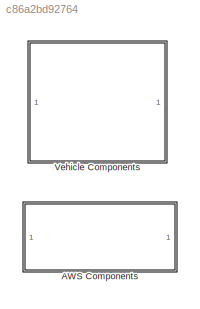
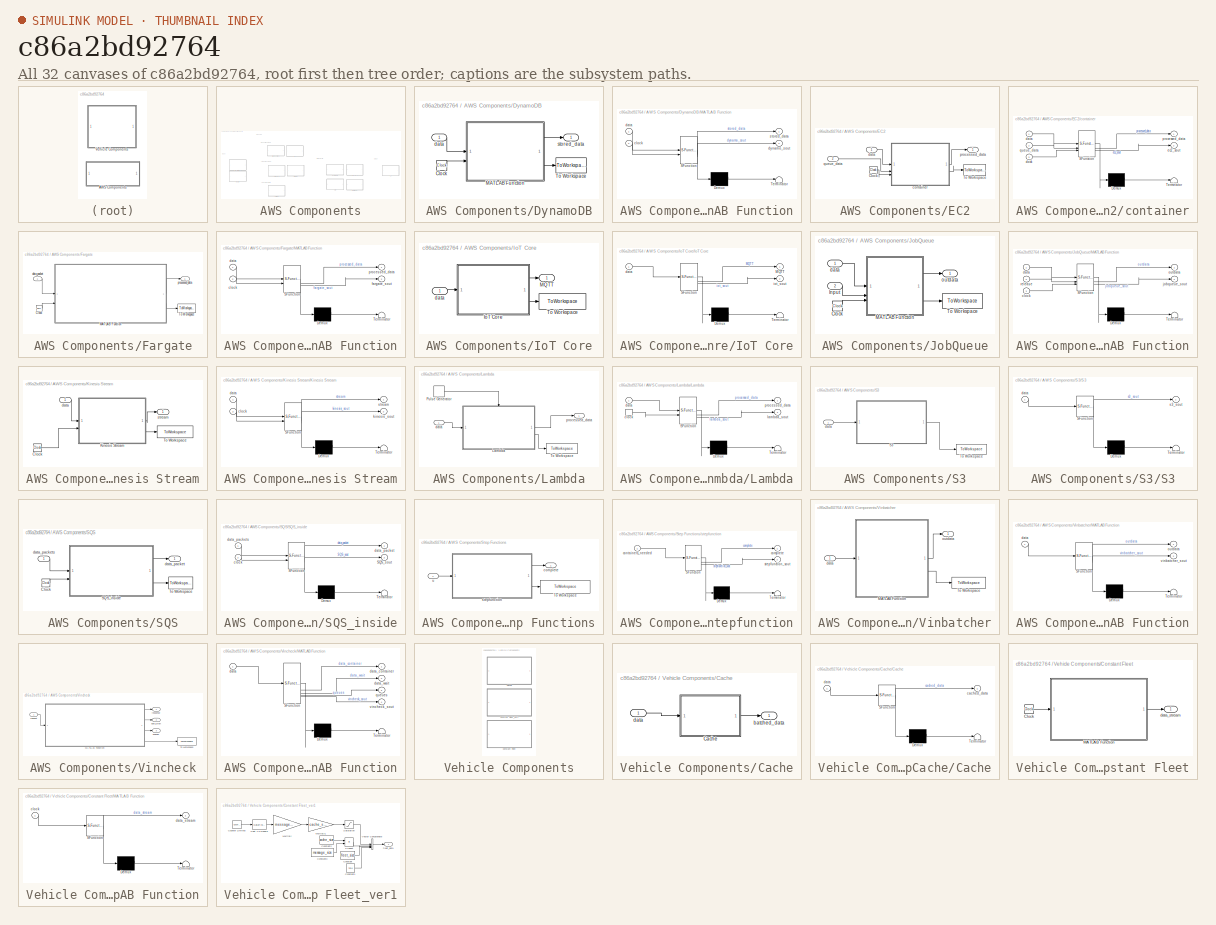
[diagram: thumbnail index - all 32 canvases of the model, root first then tree order]
MODEL slx_c86a2bd92764
KIND library
CONFIG AbsTol = auto
CONFIG EnableMultiTasking = off
CONFIG FixedStep = auto
CONFIG MaxStep = auto
CONFIG MinStep = auto
CONFIG RelTol = 1e-3
CONFIG SampleTimeConstraint = Unconstrained
CONFIG SolverName = VariableStepAuto
CONFIG StartTime = 0.0
CONFIG StopTime = 10.0
BLOCK [SubSystem] AWS Components
BLOCK [SubSystem] AWS Components/DynamoDB
BLOCK [Clock] AWS Components/DynamoDB/Clock
BLOCK [SubSystem] AWS Components/DynamoDB/MATLAB Function
  ErrorFcn = Stateflow.Translate.translate
  LibrarySourceBlock = simulink/User-Defined\nFunctions/MATLAB Function
  PermitHierarchicalResolution = ExplicitOnly
  SFBlockType = MATLAB Function
  TreatAsAtomicUnit = on
BLOCK [Demux] AWS Components/DynamoDB/MATLAB Function/ Demux 
  Outputs = 1
BLOCK [S-Function] AWS Components/DynamoDB/MATLAB Function/ SFunction 
  EnableBusSupport = off
  FunctionName = sf_sfun
  Parameters = dynamo_ondemand,dynamo_peakcapacity,dynamo_peaktime,dynamo_readrate,dynamo_stream,dynamo_writerate
  PortCounts = [2 3]
  SFcnIsStateOwnerBlock = off
  SFunctionDeploymentMode = off
  Tag = Stateflow S-Function 19
BLOCK [Terminator] AWS Components/DynamoDB/MATLAB Function/ Terminator 
BLOCK [Inport] AWS Components/DynamoDB/MATLAB Function/clock
  Port = 2
BLOCK [Inport] AWS Components/DynamoDB/MATLAB Function/data
BLOCK [Outport] AWS Components/DynamoDB/MATLAB Function/dynamo_sout
  Port = 2
BLOCK [Outport] AWS Components/DynamoDB/MATLAB Function/stored_data
BLOCK [ToWorkspace] AWS Components/DynamoDB/To Workspace
  FixptAsFi = on
  MaxDataPoints = inf
  SampleTime = -1
  SaveFormat = Timeseries
  VariableName = dynamo_sout
BLOCK [Inport] AWS Components/DynamoDB/data
BLOCK [Outport] AWS Components/DynamoDB/stored_data
BLOCK [SubSystem] AWS Components/EC2
BLOCK [Clock] AWS Components/EC2/Clock
BLOCK [ToWorkspace] AWS Components/EC2/To Workspace
  FixptAsFi = on
  MaxDataPoints = inf
  SampleTime = -1
  SaveFormat = Timeseries
  VariableName = ec2_sout
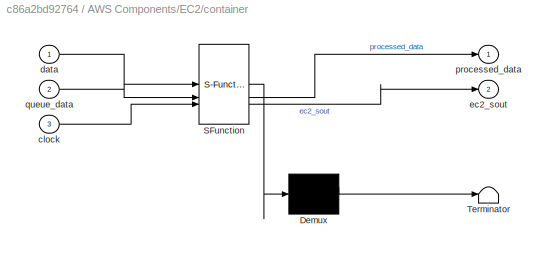
BLOCK [SubSystem] AWS Components/EC2/container
  ErrorFcn = Stateflow.Translate.translate
  LibrarySourceBlock = simulink/User-Defined\nFunctions/MATLAB Function
  PermitHierarchicalResolution = ExplicitOnly
  SFBlockType = MATLAB Function
  TreatAsAtomicUnit = on
BLOCK [Demux] AWS Components/EC2/container/ Demux 
  Outputs = 1
BLOCK [S-Function] AWS Components/EC2/container/ SFunction 
  EnableBusSupport = off
  FunctionName = sf_sfun
  Parameters = ec2_instances,ec2_memorylevel,ec2_vcpus
  PortCounts = [3 3]
  SFcnIsStateOwnerBlock = off
  SFunctionDeploymentMode = off
  Tag = Stateflow S-Function 4
BLOCK [Terminator] AWS Components/EC2/container/ Terminator 
BLOCK [Inport] AWS Components/EC2/container/clock
  Port = 3
BLOCK [Inport] AWS Components/EC2/container/data
BLOCK [Outport] AWS Components/EC2/container/ec2_sout
  Port = 2
BLOCK [Outport] AWS Components/EC2/container/processed_data
BLOCK [Inport] AWS Components/EC2/container/queue_data
  Port = 2
BLOCK [Inport] AWS Components/EC2/data
BLOCK [Outport] AWS Components/EC2/processed_data
BLOCK [Inport] AWS Components/EC2/queue_data
  Port = 2
BLOCK [SubSystem] AWS Components/Fargate
BLOCK [Clock] AWS Components/Fargate/Clock
BLOCK [SubSystem] AWS Components/Fargate/MATLAB Function
  ErrorFcn = Stateflow.Translate.translate
  LibrarySourceBlock = simulink/User-Defined\nFunctions/MATLAB Function
  PermitHierarchicalResolution = ExplicitOnly
  SFBlockType = MATLAB Function
  TreatAsAtomicUnit = on
BLOCK [Demux] AWS Components/Fargate/MATLAB Function/ Demux 
  Outputs = 1
BLOCK [S-Function] AWS Components/Fargate/MATLAB Function/ SFunction 
  EnableBusSupport = off
  FunctionName = sf_sfun
  Parameters = fargate_memorylevel,fargate_vcpus
  PortCounts = [2 3]
  SFcnIsStateOwnerBlock = off
  SFunctionDeploymentMode = off
  Tag = Stateflow S-Function 3
BLOCK [Terminator] AWS Components/Fargate/MATLAB Function/ Terminator 
BLOCK [Inport] AWS Components/Fargate/MATLAB Function/clock
  Port = 2
BLOCK [Inport] AWS Components/Fargate/MATLAB Function/data
BLOCK [Outport] AWS Components/Fargate/MATLAB Function/fargate_sout
  Port = 2
BLOCK [Outport] AWS Components/Fargate/MATLAB Function/processed_data
BLOCK [ToWorkspace] AWS Components/Fargate/To Workspace
  FixptAsFi = on
  MaxDataPoints = inf
  SampleTime = -1
  SaveFormat = Timeseries
  VariableName = fargate_sout
BLOCK [Inport] AWS Components/Fargate/data_packet
BLOCK [Outport] AWS Components/Fargate/processed_data
BLOCK [SubSystem] AWS Components/IoT Core
BLOCK [SubSystem] AWS Components/IoT Core/IoT Core
  ErrorFcn = Stateflow.Translate.translate
  LibrarySourceBlock = simulink/User-Defined\nFunctions/MATLAB Function
  PermitHierarchicalResolution = ExplicitOnly
  SFBlockType = MATLAB Function
  TreatAsAtomicUnit = on
BLOCK [Demux] AWS Components/IoT Core/IoT Core/ Demux 
  Outputs = 1
BLOCK [S-Function] AWS Components/IoT Core/IoT Core/ SFunction 
  EnableBusSupport = off
  FunctionName = sf_sfun
  PortCounts = [1 3]
  SFcnIsStateOwnerBlock = off
  SFunctionDeploymentMode = off
  Tag = Stateflow S-Function 15
BLOCK [Terminator] AWS Components/IoT Core/IoT Core/ Terminator 
BLOCK [Outport] AWS Components/IoT Core/IoT Core/MQTT
BLOCK [Inport] AWS Components/IoT Core/IoT Core/data
BLOCK [Outport] AWS Components/IoT Core/IoT Core/iot_sout
  Port = 2
BLOCK [Outport] AWS Components/IoT Core/MQTT
BLOCK [ToWorkspace] AWS Components/IoT Core/To Workspace
  FixptAsFi = on
  MaxDataPoints = inf
  SampleTime = -1
  SaveFormat = Timeseries
  VariableName = iot_sout
BLOCK [Inport] AWS Components/IoT Core/data
BLOCK [SubSystem] AWS Components/JobQueue
BLOCK [Clock] AWS Components/JobQueue/Clock
BLOCK [Inport] AWS Components/JobQueue/Input
  Port = 2
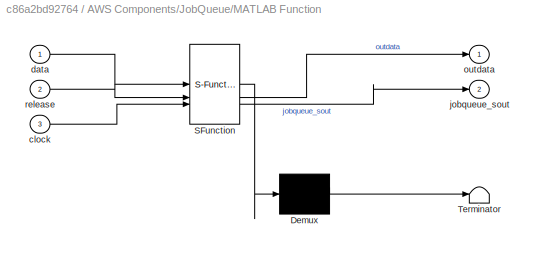
BLOCK [SubSystem] AWS Components/JobQueue/MATLAB Function
  ErrorFcn = Stateflow.Translate.translate
  LibrarySourceBlock = simulink/User-Defined\nFunctions/MATLAB Function
  PermitHierarchicalResolution = ExplicitOnly
  SFBlockType = MATLAB Function
  TreatAsAtomicUnit = on
BLOCK [Demux] AWS Components/JobQueue/MATLAB Function/ Demux 
  Outputs = 1
BLOCK [S-Function] AWS Components/JobQueue/MATLAB Function/ SFunction 
  EnableBusSupport = off
  FunctionName = sf_sfun
  PortCounts = [3 3]
  SFcnIsStateOwnerBlock = off
  SFunctionDeploymentMode = off
  Tag = Stateflow S-Function 5
BLOCK [Terminator] AWS Components/JobQueue/MATLAB Function/ Terminator 
BLOCK [Inport] AWS Components/JobQueue/MATLAB Function/clock
  Port = 3
BLOCK [Inport] AWS Components/JobQueue/MATLAB Function/data
BLOCK [Outport] AWS Components/JobQueue/MATLAB Function/jobqueue_sout
  Port = 2
BLOCK [Outport] AWS Components/JobQueue/MATLAB Function/outdata
BLOCK [Inport] AWS Components/JobQueue/MATLAB Function/release
  Port = 2
BLOCK [ToWorkspace] AWS Components/JobQueue/To Workspace
  FixptAsFi = on
  MaxDataPoints = inf
  SampleTime = -1
  SaveFormat = Timeseries
  VariableName = jobqueue_sout
BLOCK [Inport] AWS Components/JobQueue/data
BLOCK [Outport] AWS Components/JobQueue/outdata
BLOCK [SubSystem] AWS Components/Kinesis Stream
  ShowPortLabels = none
BLOCK [Clock] AWS Components/Kinesis Stream/Clock
BLOCK [SubSystem] AWS Components/Kinesis Stream/Kinesis Stream
  ErrorFcn = Stateflow.Translate.translate
  LibrarySourceBlock = simulink/User-Defined\nFunctions/MATLAB Function
  PermitHierarchicalResolution = ExplicitOnly
  SFBlockType = MATLAB Function
  TreatAsAtomicUnit = on
BLOCK [Demux] AWS Components/Kinesis Stream/Kinesis Stream/ Demux 
  Outputs = 1
BLOCK [S-Function] AWS Components/Kinesis Stream/Kinesis Stream/ SFunction 
  EnableBusSupport = off
  FunctionName = sf_sfun
  Parameters = kinesis_efos,kinesis_ondemand,kinesis_peak,kinesis_records
  PortCounts = [2 3]
  SFcnIsStateOwnerBlock = off
  SFunctionDeploymentMode = off
  Tag = Stateflow S-Function 18
BLOCK [Terminator] AWS Components/Kinesis Stream/Kinesis Stream/ Terminator 
BLOCK [Inport] AWS Components/Kinesis Stream/Kinesis Stream/clock
  Port = 2
BLOCK [Inport] AWS Components/Kinesis Stream/Kinesis Stream/data
BLOCK [Outport] AWS Components/Kinesis Stream/Kinesis Stream/kinesis_sout
  Port = 2
BLOCK [Outport] AWS Components/Kinesis Stream/Kinesis Stream/stream
BLOCK [ToWorkspace] AWS Components/Kinesis Stream/To Workspace
  FixptAsFi = on
  MaxDataPoints = inf
  SampleTime = -1
  SaveFormat = Timeseries
  VariableName = kinesis_sout
BLOCK [Inport] AWS Components/Kinesis Stream/data
BLOCK [Outport] AWS Components/Kinesis Stream/stream
BLOCK [SubSystem] AWS Components/Lambda
BLOCK [SubSystem] AWS Components/Lambda/Lambda
  ErrorFcn = Stateflow.Translate.translate
  LibrarySourceBlock = simulink/User-Defined\nFunctions/MATLAB Function
  PermitHierarchicalResolution = ExplicitOnly
  SFBlockType = MATLAB Function
  TreatAsAtomicUnit = on
BLOCK [Demux] AWS Components/Lambda/Lambda/ Demux 
  Outputs = 1
BLOCK [S-Function] AWS Components/Lambda/Lambda/ SFunction 
  EnableBusSupport = off
  FunctionName = sf_sfun
  Parameters = lambda_allocated_memory,lambda_parallel_instances
  PortCounts = [2 3]
  SFcnIsStateOwnerBlock = off
  SFunctionDeploymentMode = off
  Tag = Stateflow S-Function 13
BLOCK [Terminator] AWS Components/Lambda/Lambda/ Terminator 
BLOCK [TriggerPort] AWS Components/Lambda/Lambda/clock
  ShowOutputPort = on
  StatesWhenEnabling = held
  VariantControl = (inherit)
BLOCK [Inport] AWS Components/Lambda/Lambda/data
BLOCK [Outport] AWS Components/Lambda/Lambda/lambda_sout
  Port = 2
BLOCK [Outport] AWS Components/Lambda/Lambda/processed_data
BLOCK [DiscretePulseGenerator] AWS Components/Lambda/Pulse Generator
  Period = 1/log10(128)
  PulseType = Time based
  PulseWidth = 5
BLOCK [ToWorkspace] AWS Components/Lambda/To Workspace
  FixptAsFi = on
  MaxDataPoints = inf
  SampleTime = -1
  SaveFormat = Timeseries
  VariableName = lambda_sout
BLOCK [Inport] AWS Components/Lambda/data
BLOCK [Outport] AWS Components/Lambda/processed_data
BLOCK [SubSystem] AWS Components/S3
BLOCK [SubSystem] AWS Components/S3/S3
  ErrorFcn = Stateflow.Translate.translate
  LibrarySourceBlock = simulink/User-Defined\nFunctions/MATLAB Function
  PermitHierarchicalResolution = ExplicitOnly
  SFBlockType = MATLAB Function
  TreatAsAtomicUnit = on
BLOCK [Demux] AWS Components/S3/S3/ Demux 
  Outputs = 1
BLOCK [S-Function] AWS Components/S3/S3/ SFunction 
  EnableBusSupport = off
  FunctionName = sf_sfun
  PortCounts = [1 2]
  SFcnIsStateOwnerBlock = off
  SFunctionDeploymentMode = off
  Tag = Stateflow S-Function 14
BLOCK [Terminator] AWS Components/S3/S3/ Terminator 
BLOCK [Inport] AWS Components/S3/S3/data
BLOCK [Outport] AWS Components/S3/S3/s3_sout
BLOCK [ToWorkspace] AWS Components/S3/To Workspace
  FixptAsFi = on
  MaxDataPoints = inf
  SampleTime = -1
  SaveFormat = Timeseries
  VariableName = s3_sout
BLOCK [Inport] AWS Components/S3/data
BLOCK [SubSystem] AWS Components/SQS
BLOCK [Clock] AWS Components/SQS/Clock
BLOCK [SubSystem] AWS Components/SQS/SQS_inside
  ErrorFcn = Stateflow.Translate.translate
  LibrarySourceBlock = simulink/User-Defined\nFunctions/MATLAB Function
  PermitHierarchicalResolution = ExplicitOnly
  SFBlockType = MATLAB Function
  TreatAsAtomicUnit = on
BLOCK [Demux] AWS Components/SQS/SQS_inside/ Demux 
  Outputs = 1
BLOCK [S-Function] AWS Components/SQS/SQS_inside/ SFunction 
  EnableBusSupport = off
  FunctionName = sf_sfun
  Parameters = sqs_queue_size,sqs_timeout
  PortCounts = [2 3]
  SFcnIsStateOwnerBlock = off
  SFunctionDeploymentMode = off
  Tag = Stateflow S-Function 12
BLOCK [Terminator] AWS Components/SQS/SQS_inside/ Terminator 
BLOCK [Outport] AWS Components/SQS/SQS_inside/SQS_sout
  Port = 2
BLOCK [Inport] AWS Components/SQS/SQS_inside/clock
  Port = 2
BLOCK [Outport] AWS Components/SQS/SQS_inside/data_packet
BLOCK [Inport] AWS Components/SQS/SQS_inside/data_packets
BLOCK [ToWorkspace] AWS Components/SQS/To Workspace
  FixptAsFi = on
  MaxDataPoints = inf
  SampleTime = -1
  SaveFormat = Timeseries
  VariableName = sqs_sout
BLOCK [Outport] AWS Components/SQS/data_packet
BLOCK [Inport] AWS Components/SQS/data_packets
BLOCK [SubSystem] AWS Components/Step Functions
BLOCK [ToWorkspace] AWS Components/Step Functions/To Workspace
  FixptAsFi = on
  MaxDataPoints = inf
  SampleTime = -1
  SaveFormat = Timeseries
  VariableName = stepfunctions_sout
BLOCK [Outport] AWS Components/Step Functions/complete
BLOCK [SubSystem] AWS Components/Step Functions/stepfunction
  ErrorFcn = Stateflow.Translate.translate
  LibrarySourceBlock = simulink/User-Defined\nFunctions/MATLAB Function
  PermitHierarchicalResolution = ExplicitOnly
  SFBlockType = MATLAB Function
  TreatAsAtomicUnit = on
BLOCK [Demux] AWS Components/Step Functions/stepfunction/ Demux 
  Outputs = 1
BLOCK [S-Function] AWS Components/Step Functions/stepfunction/ SFunction 
  EnableBusSupport = off
  FunctionName = sf_sfun
  PortCounts = [1 3]
  SFcnIsStateOwnerBlock = off
  SFunctionDeploymentMode = off
  Tag = Stateflow S-Function 20
BLOCK [Terminator] AWS Components/Step Functions/stepfunction/ Terminator 
BLOCK [Outport] AWS Components/Step Functions/stepfunction/complete
BLOCK [Inport] AWS Components/Step Functions/stepfunction/containers_needed
BLOCK [Outport] AWS Components/Step Functions/stepfunction/stepfunction_sout
  Port = 2
BLOCK [Inport] AWS Components/Step Functions/u
BLOCK [SubSystem] AWS Components/Vinbatcher
BLOCK [SubSystem] AWS Components/Vinbatcher/MATLAB Function
  ErrorFcn = Stateflow.Translate.translate
  LibrarySourceBlock = simulink/User-Defined\nFunctions/MATLAB Function
  PermitHierarchicalResolution = ExplicitOnly
  SFBlockType = MATLAB Function
  TreatAsAtomicUnit = on
BLOCK [Demux] AWS Components/Vinbatcher/MATLAB Function/ Demux 
  Outputs = 1
BLOCK [S-Function] AWS Components/Vinbatcher/MATLAB Function/ SFunction 
  EnableBusSupport = off
  FunctionName = sf_sfun
  PortCounts = [1 3]
  SFcnIsStateOwnerBlock = off
  SFunctionDeploymentMode = off
  Tag = Stateflow S-Function 6
BLOCK [Terminator] AWS Components/Vinbatcher/MATLAB Function/ Terminator 
BLOCK [Inport] AWS Components/Vinbatcher/MATLAB Function/data
BLOCK [Outport] AWS Components/Vinbatcher/MATLAB Function/outdata
BLOCK [Outport] AWS Components/Vinbatcher/MATLAB Function/vinbatcher_sout
  Port = 2
BLOCK [ToWorkspace] AWS Components/Vinbatcher/To Workspace
  FixptAsFi = on
  MaxDataPoints = inf
  SampleTime = -1
  SaveFormat = Timeseries
  VariableName = vinbatcher_sout
BLOCK [Inport] AWS Components/Vinbatcher/data
BLOCK [Outport] AWS Components/Vinbatcher/outdata
BLOCK [SubSystem] AWS Components/Vincheck
BLOCK [SubSystem] AWS Components/Vincheck/MATLAB Function
  ErrorFcn = Stateflow.Translate.translate
  LibrarySourceBlock = simulink/User-Defined\nFunctions/MATLAB Function
  PermitHierarchicalResolution = ExplicitOnly
  SFBlockType = MATLAB Function
  TreatAsAtomicUnit = on
BLOCK [Demux] AWS Components/Vincheck/MATLAB Function/ Demux 
  Outputs = 1
BLOCK [S-Function] AWS Components/Vincheck/MATLAB Function/ SFunction 
  EnableBusSupport = off
  FunctionName = sf_sfun
  Parameters = ec2_instances
  PortCounts = [1 5]
  SFcnIsStateOwnerBlock = off
  SFunctionDeploymentMode = off
  Tag = Stateflow S-Function 1
BLOCK [Terminator] AWS Components/Vincheck/MATLAB Function/ Terminator 
BLOCK [Inport] AWS Components/Vincheck/MATLAB Function/data
BLOCK [Outport] AWS Components/Vincheck/MATLAB Function/data_container
BLOCK [Outport] AWS Components/Vincheck/MATLAB Function/data_wait
  Port = 2
BLOCK [Outport] AWS Components/Vincheck/MATLAB Function/queues
  Port = 3
BLOCK [Outport] AWS Components/Vincheck/MATLAB Function/vincheck_sout
  Port = 4
BLOCK [ToWorkspace] AWS Components/Vincheck/To Workspace
  FixptAsFi = on
  MaxDataPoints = inf
  SampleTime = -1
  SaveFormat = Timeseries
  VariableName = vincheck_sout
BLOCK [Outport] AWS Components/Vincheck/data_wait
  Port = 2
BLOCK [Outport] AWS Components/Vincheck/queues
  Port = 3
BLOCK [Inport] AWS Components/Vincheck/request
BLOCK [Outport] AWS Components/Vincheck/response
BLOCK [SubSystem] Vehicle Components
BLOCK [SubSystem] Vehicle Components/Cache
  ShowPortLabels = none
BLOCK [SubSystem] Vehicle Components/Cache/Cache
  ErrorFcn = Stateflow.Translate.translate
  LibrarySourceBlock = simulink/User-Defined\nFunctions/MATLAB Function
  PermitHierarchicalResolution = ExplicitOnly
  SFBlockType = MATLAB Function
  TreatAsAtomicUnit = on
BLOCK [Demux] Vehicle Components/Cache/Cache/ Demux 
  Outputs = 1
BLOCK [S-Function] Vehicle Components/Cache/Cache/ SFunction 
  EnableBusSupport = off
  FunctionName = sf_sfun
  Parameters = cache_size
  PortCounts = [1 2]
  SFcnIsStateOwnerBlock = off
  SFunctionDeploymentMode = off
  Tag = Stateflow S-Function 16
BLOCK [Terminator] Vehicle Components/Cache/Cache/ Terminator 
BLOCK [Outport] Vehicle Components/Cache/Cache/cached_data
BLOCK [Inport] Vehicle Components/Cache/Cache/data
BLOCK [Outport] Vehicle Components/Cache/batched_data
BLOCK [Inport] Vehicle Components/Cache/data
BLOCK [SubSystem] Vehicle Components/Constant Fleet
BLOCK [Clock] Vehicle Components/Constant Fleet/Clock
BLOCK [SubSystem] Vehicle Components/Constant Fleet/MATLAB Function
  ErrorFcn = Stateflow.Translate.translate
  LibrarySourceBlock = simulink/User-Defined\nFunctions/MATLAB Function
  PermitHierarchicalResolution = ExplicitOnly
  SFBlockType = MATLAB Function
  TreatAsAtomicUnit = on
BLOCK [Demux] Vehicle Components/Constant Fleet/MATLAB Function/ Demux 
  Outputs = 1
BLOCK [S-Function] Vehicle Components/Constant Fleet/MATLAB Function/ SFunction 
  EnableBusSupport = on
  FunctionName = sf_sfun
  Parameters = car_cache,fleet_size,message_size,simulation_time
  PortCounts = [1 2]
  SFcnIsStateOwnerBlock = off
  SFunctionDeploymentMode = off
  Tag = Stateflow S-Function 2
BLOCK [Terminator] Vehicle Components/Constant Fleet/MATLAB Function/ Terminator 
BLOCK [Inport] Vehicle Components/Constant Fleet/MATLAB Function/clock
BLOCK [Outport] Vehicle Components/Constant Fleet/MATLAB Function/data_stream
BLOCK [Outport] Vehicle Components/Constant Fleet/data_stream
BLOCK [SubSystem] Vehicle Components/Constant Fleet_ver1
  ShowPortLabels = none
BLOCK [DataTypeConversion] Vehicle Components/Constant Fleet_ver1/Cast To Double
  OutDataTypeStr = double
  RndMeth = Floor
  SaturateOnIntegerOverflow = off
BLOCK [Constant] Vehicle Components/Constant Fleet_ver1/Constant
  Value = fleet_size
BLOCK [Constant] Vehicle Components/Constant Fleet_ver1/Constant1
  Value = time
BLOCK [Constant] Vehicle Components/Constant Fleet_ver1/Constant2
  Value = cache_size
BLOCK [Constant] Vehicle Components/Constant Fleet_ver1/Constant3
  Value = message_size
BLOCK [Reference] Vehicle Components/Constant Fleet_ver1/Counter Limited  REF=simulink/Sources/Counter
Limited
  SourceBlock = simulink/Sources/Counter\nLimited
  SourceType = Counter Limited
BLOCK [Gain] Vehicle Components/Constant Fleet_ver1/Multiply
  Gain = message_size
BLOCK [Gain] Vehicle Components/Constant Fleet_ver1/Multiply1
  Gain = cache_size
BLOCK [Product] Vehicle Components/Constant Fleet_ver1/Product
BLOCK [Saturate] Vehicle Components/Constant Fleet_ver1/Saturation
  LowerLimit = 0
  UpperLimit = fleet_size*time*message_size
BLOCK [Concatenate] Vehicle Components/Constant Fleet_ver1/Vector Concatenate
  NumInputs = 4
BLOCK [Outport] Vehicle Components/Constant Fleet_ver1/fleet_data
ANNOTATION AWS Components: Auto-Scaling Fargate
ANNOTATION AWS Components: Auto-Scaling Lambda
ANNOTATION AWS Components: Ingest
ANNOTATION AWS Components: Intermediary utils
ANNOTATION AWS Components: Processing
ANNOTATION AWS Components: Storage
ANNOTATION AWS Components: VIN-specific Containers
LINE AWS Components/DynamoDB/Clock:1 -> AWS Components/DynamoDB/MATLAB Function:2
LINE AWS Components/DynamoDB/MATLAB Function:1 -> AWS Components/DynamoDB/stored_data:1
LINE AWS Components/DynamoDB/MATLAB Function:2 -> AWS Components/DynamoDB/To Workspace:1
LINE AWS Components/DynamoDB/data:1 -> AWS Components/DynamoDB/MATLAB Function:1
LINE AWS Components/EC2/Clock:1 -> AWS Components/EC2/container:3
LINE AWS Components/EC2/container:1 -> AWS Components/EC2/processed_data:1
LINE AWS Components/EC2/container:2 -> AWS Components/EC2/To Workspace:1
LINE AWS Components/EC2/data:1 -> AWS Components/EC2/container:1
LINE AWS Components/EC2/queue_data:1 -> AWS Components/EC2/container:2
LINE AWS Components/Fargate/Clock:1 -> AWS Components/Fargate/MATLAB Function:2
LINE AWS Components/Fargate/MATLAB Function:1 -> AWS Components/Fargate/processed_data:1
LINE AWS Components/Fargate/MATLAB Function:2 -> AWS Components/Fargate/To Workspace:1
LINE AWS Components/Fargate/data_packet:1 -> AWS Components/Fargate/MATLAB Function:1
LINE AWS Components/IoT Core/IoT Core:1 -> AWS Components/IoT Core/MQTT:1
LINE AWS Components/IoT Core/IoT Core:2 -> AWS Components/IoT Core/To Workspace:1
LINE AWS Components/IoT Core/data:1 -> AWS Components/IoT Core/IoT Core:1
LINE AWS Components/JobQueue/Clock:1 -> AWS Components/JobQueue/MATLAB Function:3
LINE AWS Components/JobQueue/Input:1 -> AWS Components/JobQueue/MATLAB Function:2
LINE AWS Components/JobQueue/MATLAB Function:1 -> AWS Components/JobQueue/outdata:1
LINE AWS Components/JobQueue/MATLAB Function:2 -> AWS Components/JobQueue/To Workspace:1
LINE AWS Components/JobQueue/data:1 -> AWS Components/JobQueue/MATLAB Function:1
LINE AWS Components/Kinesis Stream/Clock:1 -> AWS Components/Kinesis Stream/Kinesis Stream:2
LINE AWS Components/Kinesis Stream/Kinesis Stream:1 -> AWS Components/Kinesis Stream/stream:1
LINE AWS Components/Kinesis Stream/Kinesis Stream:2 -> AWS Components/Kinesis Stream/To Workspace:1
LINE AWS Components/Kinesis Stream/data:1 -> AWS Components/Kinesis Stream/Kinesis Stream:1
LINE AWS Components/Lambda/Lambda:1 -> AWS Components/Lambda/processed_data:1
LINE AWS Components/Lambda/Lambda:2 -> AWS Components/Lambda/To Workspace:1
LINE AWS Components/Lambda/Pulse Generator:1 -> AWS Components/Lambda/Lambda:trigger
LINE AWS Components/Lambda/data:1 -> AWS Components/Lambda/Lambda:1
LINE AWS Components/S3/S3:1 -> AWS Components/S3/To Workspace:1
LINE AWS Components/S3/data:1 -> AWS Components/S3/S3:1
LINE AWS Components/SQS/Clock:1 -> AWS Components/SQS/SQS_inside:2
LINE AWS Components/SQS/SQS_inside:1 -> AWS Components/SQS/data_packet:1
LINE AWS Components/SQS/SQS_inside:2 -> AWS Components/SQS/To Workspace:1
LINE AWS Components/SQS/data_packets:1 -> AWS Components/SQS/SQS_inside:1
LINE AWS Components/Step Functions/stepfunction:1 -> AWS Components/Step Functions/complete:1
LINE AWS Components/Step Functions/stepfunction:2 -> AWS Components/Step Functions/To Workspace:1
LINE AWS Components/Step Functions/u:1 -> AWS Components/Step Functions/stepfunction:1
LINE AWS Components/Vinbatcher/MATLAB Function:1 -> AWS Components/Vinbatcher/outdata:1
LINE AWS Components/Vinbatcher/MATLAB Function:2 -> AWS Components/Vinbatcher/To Workspace:1
LINE AWS Components/Vinbatcher/data:1 -> AWS Components/Vinbatcher/MATLAB Function:1
LINE AWS Components/Vincheck/MATLAB Function:1 -> AWS Components/Vincheck/response:1
LINE AWS Components/Vincheck/MATLAB Function:2 -> AWS Components/Vincheck/data_wait:1
LINE AWS Components/Vincheck/MATLAB Function:3 -> AWS Components/Vincheck/queues:1
LINE AWS Components/Vincheck/MATLAB Function:4 -> AWS Components/Vincheck/To Workspace:1
LINE AWS Components/Vincheck/request:1 -> AWS Components/Vincheck/MATLAB Function:1
LINE Vehicle Components/Cache/Cache:1 -> Vehicle Components/Cache/batched_data:1
LINE Vehicle Components/Cache/data:1 -> Vehicle Components/Cache/Cache:1
LINE Vehicle Components/Constant Fleet/Clock:1 -> Vehicle Components/Constant Fleet/MATLAB Function:1
LINE Vehicle Components/Constant Fleet/MATLAB Function:1 -> Vehicle Components/Constant Fleet/data_stream:1
LINE Vehicle Components/Constant Fleet_ver1/Cast To Double:1 -> Vehicle Components/Constant Fleet_ver1/Multiply:1
LINE Vehicle Components/Constant Fleet_ver1/Constant1:1 -> Vehicle Components/Constant Fleet_ver1/Vector Concatenate:4
LINE Vehicle Components/Constant Fleet_ver1/Constant2:1 -> Vehicle Components/Constant Fleet_ver1/Product:1
LINE Vehicle Components/Constant Fleet_ver1/Constant3:1 -> Vehicle Components/Constant Fleet_ver1/Product:2
LINE Vehicle Components/Constant Fleet_ver1/Constant:1 -> Vehicle Components/Constant Fleet_ver1/Vector Concatenate:3
LINE Vehicle Components/Constant Fleet_ver1/Counter Limited:1 -> Vehicle Components/Constant Fleet_ver1/Cast To Double:1
LINE Vehicle Components/Constant Fleet_ver1/Multiply1:1 -> Vehicle Components/Constant Fleet_ver1/Saturation:1
LINE Vehicle Components/Constant Fleet_ver1/Multiply:1 -> Vehicle Components/Constant Fleet_ver1/Multiply1:1
LINE Vehicle Components/Constant Fleet_ver1/Product:1 -> Vehicle Components/Constant Fleet_ver1/Vector Concatenate:2
LINE Vehicle Components/Constant Fleet_ver1/Saturation:1 -> Vehicle Components/Constant Fleet_ver1/Vector Concatenate:1
LINE Vehicle Components/Constant Fleet_ver1/Vector Concatenate:1 -> Vehicle Components/Constant Fleet_ver1/fleet_data:1
CHART AWS Components/Lambda/Lambda states=1 transitions=1
  STATE_LABEL 'eML_blk_kernel()'
  STATE_LABEL 'SCRIPT:\nfunction [processed_data, lambda_sout]= lambda(data,lambda_parallel_instances, lambda_allocated_memory)\n%Price of lambda instance depends on memory allocated to it\n%An increase in memory size triggers an equivalent increase in CPU available to your function.\n\n% Data left in lambda queue to process\npersistent remaining_data;\n% Chunk size on incoming data\npersistent chunk_size;\n% Previously ...<+1935ch>'
CHART AWS Components/S3/S3 states=1 transitions=1
  STATE_LABEL 'eML_blk_kernel()'
  STATE_LABEL 'SCRIPT:\nfunction s3_sout = S3(data)\n\n% Keeps count of amount of data buckets (MB)\npersistent in_storage;\n% Overall cost for usage\npersistent s3_cost;\n\nif isempty(in_storage)\n    in_storage = 0;\n    s3_cost = 0;\nend\n\n% Received data (Might be zero if read in between pulses)\n% data_packets = (size_sent_in_total, size_of_each_file)\nnew_data = max(0,data(1) - in_storage);\nin_storage = in_storage + new...<+340ch>'
CHART AWS Components/IoT Core/IoT Core states=1 transitions=1
  STATE_LABEL 'eML_blk_kernel()'
  STATE_LABEL 'SCRIPT:\nfunction [MQTT,iot_sout]= iot_core(data)\n\ndata_received = data(1);\ndata_package_size = data(2);\nno_of_devices = data(3);\nsimulation_time = data(4);\n\nno_of_messages_received =  round(data_received/data_package_size);\nbillable_messages = ceil(data_package_size/(5/1000));\nmessages_sent = no_of_messages_received * billable_messages;\n\nconnectivity_charges = (simulation_time/60) * no_of_devices ...<+155ch>'
CHART Vehicle Components/Cache/Cache states=1 transitions=1
  STATE_LABEL 'eML_blk_kernel()'
  STATE_LABEL 'SCRIPT:\nfunction cached_data = cache(data,cache_size)\n\n% Size of data currently in queue (MB)\npersistent cache_data;\n% Size of historically sent data (MB)\npersistent sent_data;\n% Size of historically received data (MB)\npersistent received_data;\n\nif isempty(cache_data)\n    cache_data = 0;\n    sent_data = 0;\n    received_data = 0;\nend\n\n% Get delta data\nnew_data = max(0,data(1) - received_data);\n\n% C...<+300ch>'
CHART AWS Components/Kinesis Stream/Kinesis Stream states=1 transitions=1
  STATE_LABEL 'eML_blk_kernel()'
  STATE_LABEL 'SCRIPT:\nfunction [stream, kinesis_sout] = kinesis(data, clock, kinesis_ondemand, kinesis_efos, kinesis_records, kinesis_peak)\n\npersistent received_data;\npersistent accepted_data;\npersistent streamed_data;\npersistent time_passed;\npersistent last_received;\npersistent running_time;\npersistent peak_buffer;\npersistent peak_records;\n\nif isempty(received_data)\n    received_data = 0;\n    accepted_data = 0...<+2713ch>'
CHART AWS Components/DynamoDB/MATLAB Function states=1 transitions=1
  STATE_LABEL 'eML_blk_kernel()'
  STATE_LABEL 'SCRIPT:\nfunction [stored_data, dynamo_sout]= dynamo(data, clock,...\n    dynamo_stream, dynamo_ondemand, dynamo_writerate,...\n    dynamo_peakcapacity, dynamo_peaktime, dynamo_readrate)\n\npersistent in_memory;\npersistent received_data;\npersistent cost;\npersistent outputed_data;\npersistent last_received;\npersistent accepted_data;\npersistent execution_time;\n\nif isempty(in_memory)\n    in_memory = 0;\n   ...<+3608ch>'
CHART AWS Components/Step Functions/stepfunction states=1 transitions=1
  STATE_LABEL 'eML_blk_kernel()'
  STATE_LABEL 'SCRIPT:\nfunction [complete,stepfunction_sout] = stepfunction(containers_needed)\n\npersistent started_containers;\npersistent prev_need;\n\nif isempty(started_containers)\n    started_containers = 0;\n    prev_need = containers_needed;\nend\n\nif (containers_needed - prev_need > 0)\n    started_containers = started_containers + randi([1, containers_needed]);\n    prev_need = containers_needed;\nend\n\ncomplete =...<+52ch>'
CHART AWS Components/Vincheck/MATLAB Function states=1 transitions=1
  STATE_LABEL 'eML_blk_kernel()'
  STATE_LABEL 'SCRIPT:\nfunction [data_container, data_wait,queues,vincheck_sout] = vincheck(data, ec2_instances)\n%Price of lambda instance depends on memory allocated to it\n%An increase in memory size triggers an equivalent increase in CPU available to your function.\n\n% Data left in lambda queue to process\npersistent remaining_data;\n% Chunk size on incoming data\npersistent chunk_size;\n% Previously received to de...<+2607ch>'
CHART Vehicle Components/Constant Fleet/MATLAB Function states=1 transitions=1
  STATE_LABEL 'eML_blk_kernel()'
  STATE_LABEL 'SCRIPT:\nfunction data_stream  = fcn(clock, message_size, car_cache,fleet_size, simulation_time)\n\npersistent out;\npersistent last_tick;\npersistent data_to_send;\n\nif isempty(out)\n    out = 0;\n    data_to_send = (message_size*fleet_size*simulation_time);\n    last_tick = 0;\nend\n\ntick = clock;\npassed_time = tick-last_tick;\nlast_tick = tick;\n\nsend_this_tick = (data_to_send/simulation_time)*passed_time;\n...<+246ch>'
CHART AWS Components/Fargate/MATLAB Function states=1 transitions=1
  STATE_LABEL 'eML_blk_kernel()'
  STATE_LABEL 'SCRIPT:\nfunction [processed_data,fargate_sout] = fargate(data, clock,fargate_vcpus,fargate_memorylevel)\n\npersistent computed_data;\npersistent received_data;\npersistent elapsed_time;\npersistent active_tasks;\npersistent remaining_comptasks;\npersistent accumulated_latency;\npersistent cost;\npersistent memory;\n\nif isempty(computed_data)\n    computed_data = 0;\n    received_data = 0;\n    elapsed_time = 0...<+1346ch>'
CHART AWS Components/EC2/container states=1 transitions=1
  STATE_LABEL 'eML_blk_kernel()'
  STATE_LABEL 'SCRIPT:\nfunction [processed_data, ec2_sout] = container(data, queue_data, clock,ec2_instances, ec2_memorylevel, ec2_vcpus)\n\npersistent computed_data;\npersistent received_data;\npersistent elapsed_time;\npersistent active_instances;\npersistent remaining_comptasks;\npersistent cost;\npersistent memory;\npersistent hardware;\npersistent hardware_cost;\npersistent comptasks_per_second;\n\nif isempty(computed_d...<+2071ch>'
CHART AWS Components/JobQueue/MATLAB Function states=1 transitions=1
  STATE_LABEL 'eML_blk_kernel()'
  STATE_LABEL 'SCRIPT:\nfunction [outdata, jobqueue_sout]= jobqueue(data, release,clock)\n\n% Size of data currently in queue (MB)\npersistent queue_data;\n% Size of historically sent data (MB)\npersistent sent_data;\n% Size of historically received data (MB)\npersistent received_data;\n% Number of requests to store or retrieve from queue (per file/message)\npersistent requests;\n%---- Timing ----%\n% All times in simulatio...<+2302ch>'
CHART AWS Components/Vinbatcher/MATLAB Function states=1 transitions=1
  STATE_LABEL 'eML_blk_kernel()'
  STATE_LABEL 'SCRIPT:\nfunction [outdata,vinbatcher_sout] = vinbatcher(data)\n%Price of lambda instance depends on memory allocated to it\n%An increase in memory size triggers an equivalent increase in CPU available to your function.\n\n% Data left in lambda queue to process\npersistent remaining_data;\n% Chunk size on incoming data\npersistent chunk_size;\n% Previously received to detect change in incoming data\npersist...<+1742ch>'
CHART AWS Components/SQS/SQS_inside states=1 transitions=1
  STATE_LABEL 'eML_blk_kernel()'
  STATE_LABEL 'SCRIPT:\nfunction [data_packet,SQS_sout]= SQS(data_packets,sqs_queue_size, clock, sqs_timeout)\n\n% Size of data currently in queue (MB)\npersistent queue_data;\n% Size of historically sent data (MB)\npersistent sent_data;\n% Size of historically received data (MB)\npersistent received_data;\n% Number of requests to store or retrieve from queue (per file/message)\npersistent requests;\n%---- Timing ----%\n% A...<+3020ch>'
CHART  states=0 transitions=0
CHART  states=0 transitions=0
CHART  states=0 transitions=0
CHART  states=0 transitions=0
CHART  states=0 transitions=0
CHART  states=0 transitions=0
CHART  states=0 transitions=0
CHART  states=0 transitions=0
CHART  states=0 transitions=0
CHART  states=0 transitions=0
CHART  states=0 transitions=0
CHART  states=0 transitions=0
CHART  states=0 transitions=0
CHART  states=0 transitions=0
